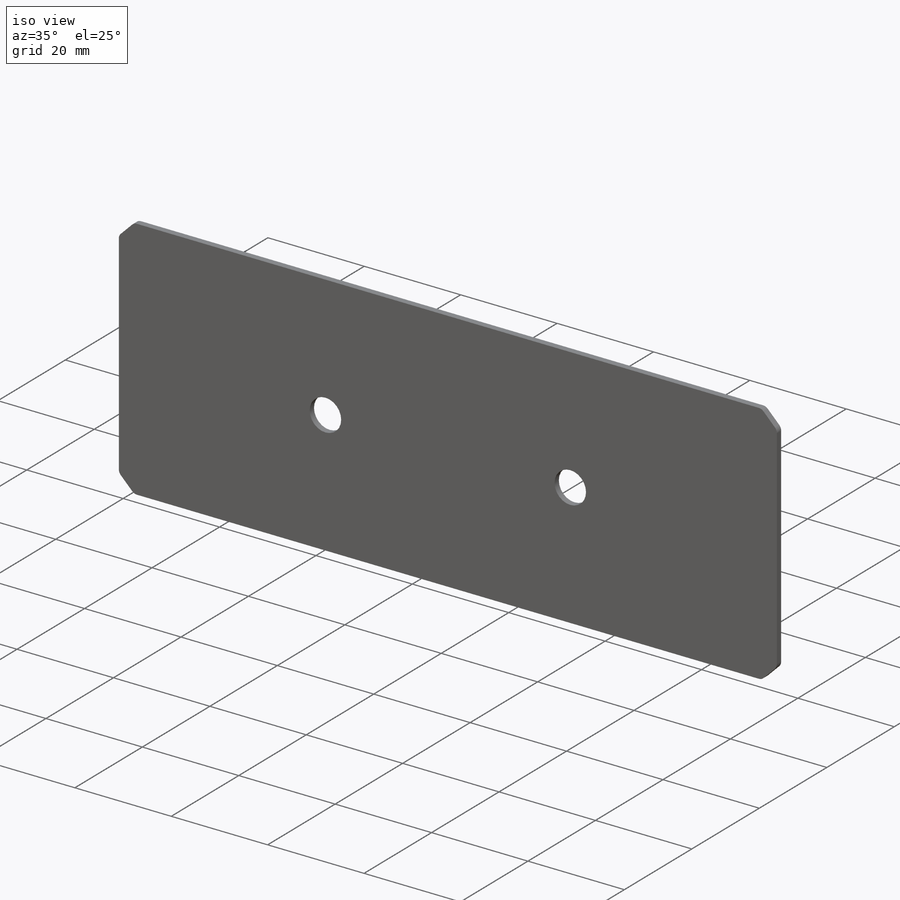
[diagram: iso view]
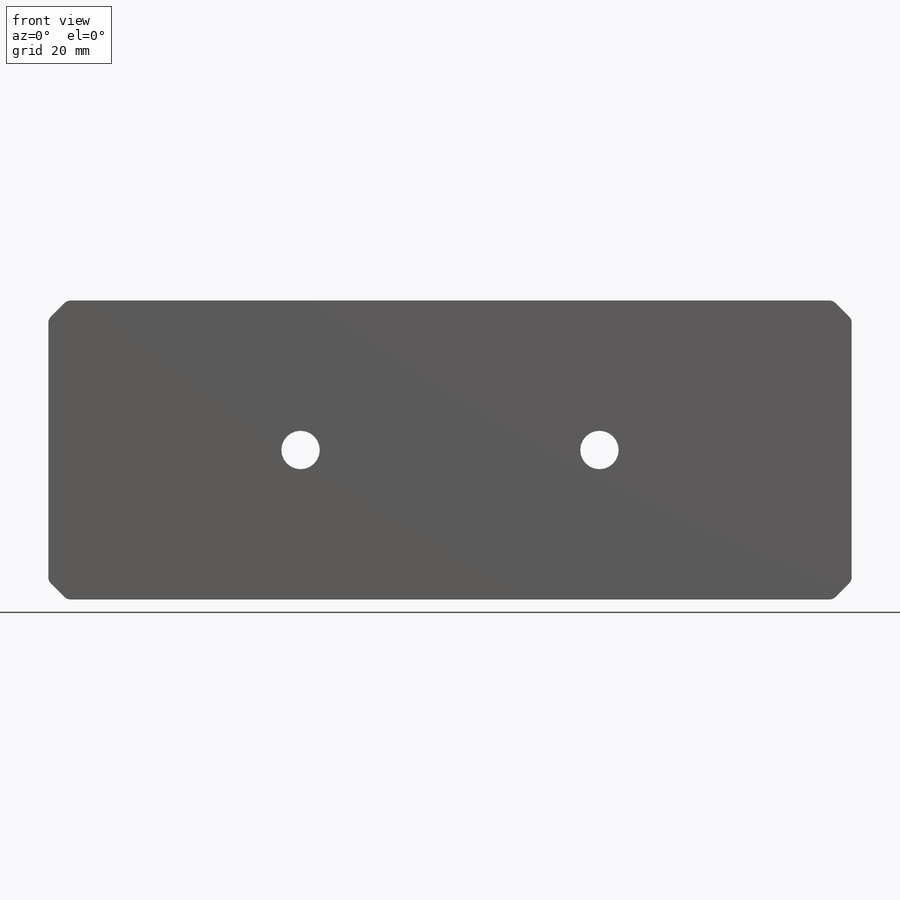
[diagram: front view]
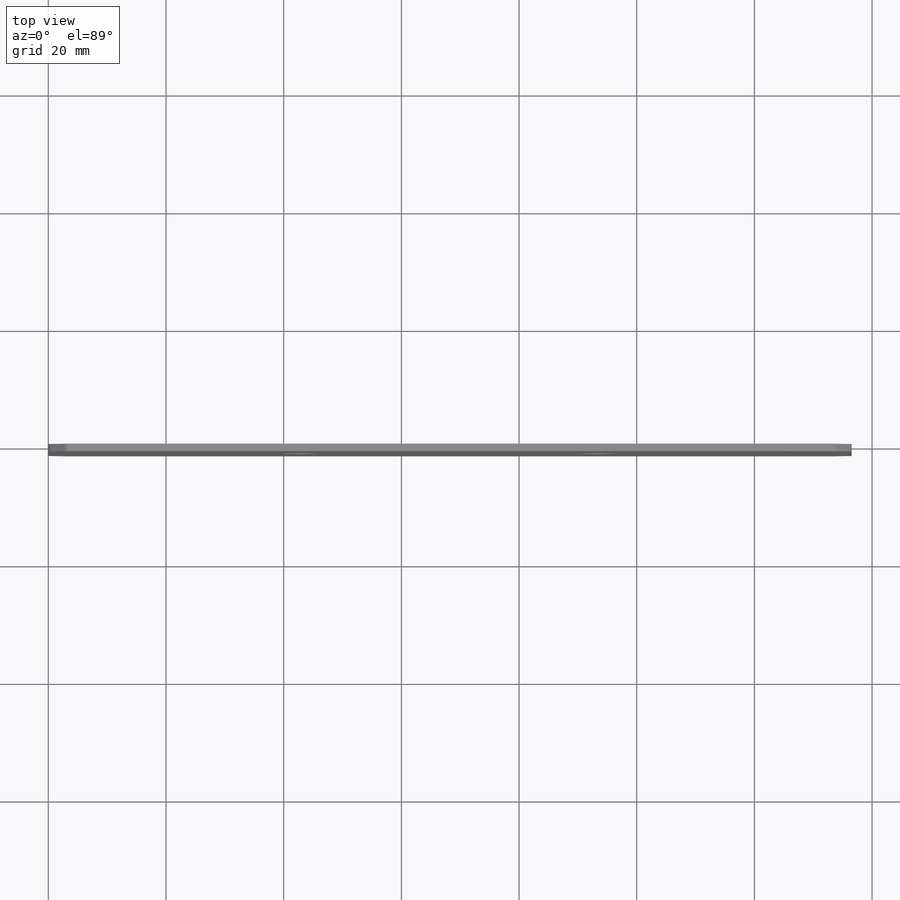
[diagram: top view]
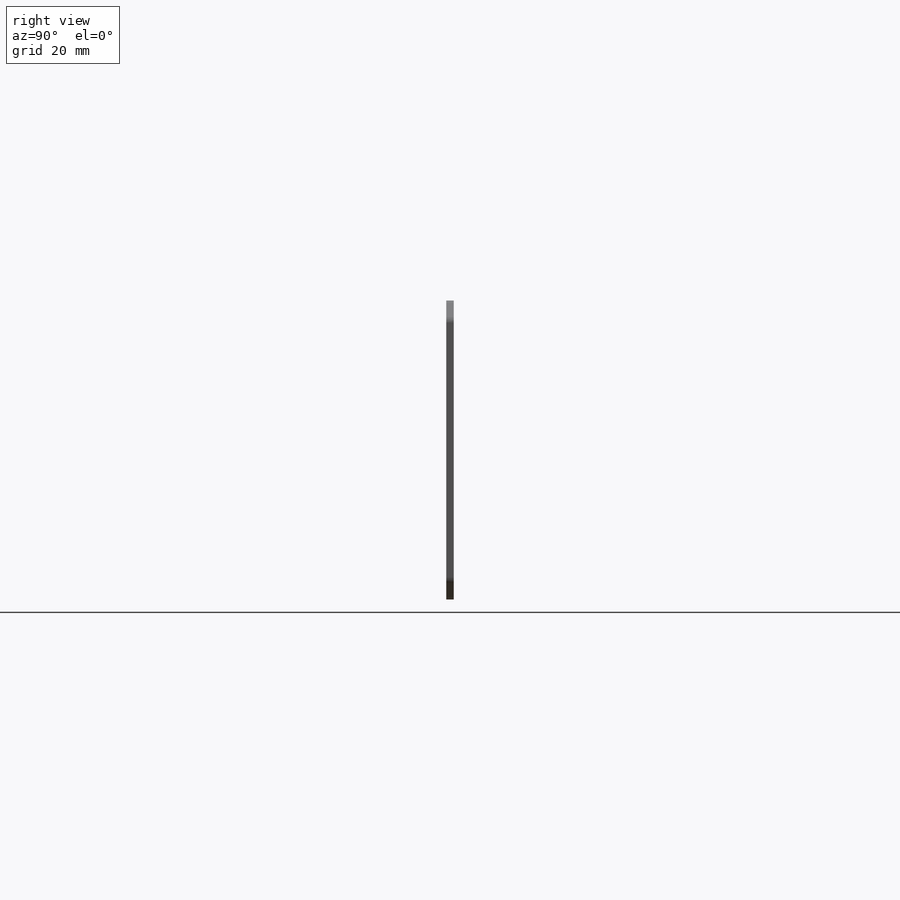
[diagram: right view]
SOLIDWORKS PART (.sldprt)
format: sldprt  version: not decoded by parser v0  size: 199,168 bytes
history: native  units: mm
features: sketch x2, material x1, extrude x1, cut_extrude x1, chamfer x1, fillet x1 + 1 further entry (+10 scaffold rows collapsed)
feature tree (18):
  scaffold x10  (default folders/planes/origin — collapsed)
  material  "Material <not specified>"
  "Origin"  ID=392984584
  sketch  "Sketch1"  dims[D1=50.8mm D2=136.525mm]
  extrude  "Boss-Extrude1"  Depth=1.27mm
  sketch  "Sketch3"  dims[c1.D1=6.5278mm c1.D2=6.5278mm c1.D3=25.4mm c1.D4=42.8625mm c1.D5=25.4mm c1.D6=25.4mm c2.D3=50.8mm c2.D7=14.9225mm]
  cut_extrude  "Cut-Extrude1"  [1 undecoded]
  chamfer  "Chamfer1"  Distance=3.175mm Angle=45deg
  fillet  "Fillet1"  Radius=1.27mm
decode coverage: 5 of 6 modeling features carry decoded parameters; 1 rows unclassified (native names shown)
note: 1 parameter value undecoded
note: suppression state not decoded; provenance and decode notes live in map.json
